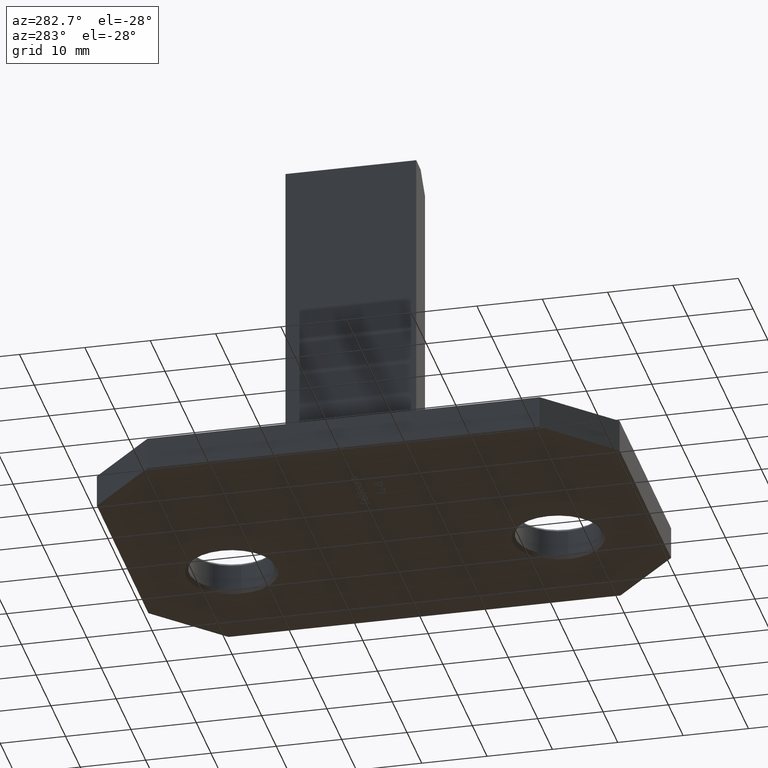
[diagram: clean part render]
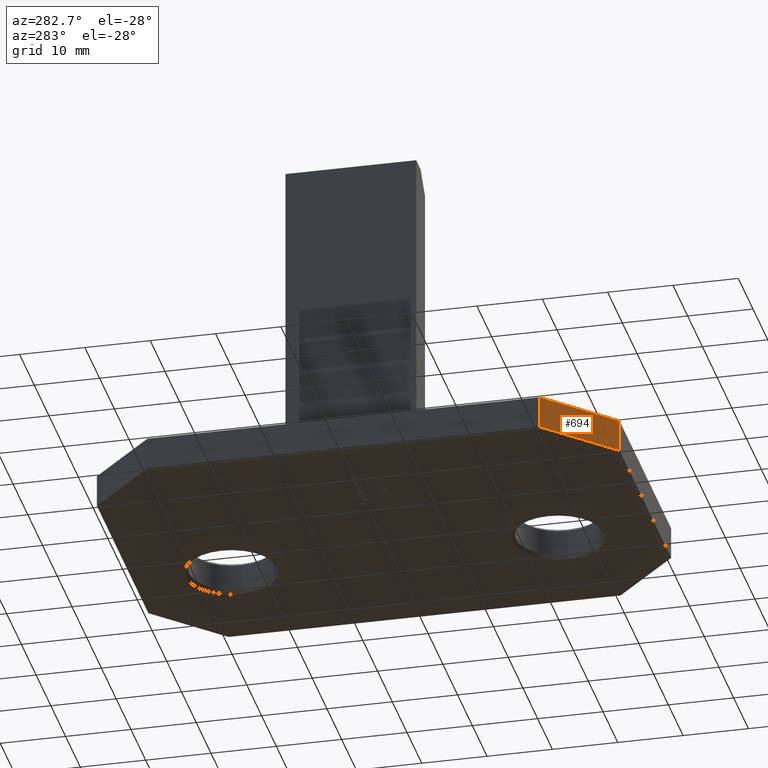
[diagram: same view with one face highlighted and labeled with its STEP entity id]
A machine part, auxiliary view. The second image highlights one B-rep face of the part: STEP entity #694.
In plain terms, the highlighted planar face has unit normal (0.7071, 0.7071, -0).
Its self-contained STEP definition (entity closure, byte-faithful):
#74 = VERTEX_POINT ( 'NONE', #6173 ) ;
#121 = CARTESIAN_POINT ( 'NONE',  ( -17.50000000000000700, -40.00000000000000000, 5.000000000000000000 ) ) ;
#395 = ORIENTED_EDGE ( 'NONE', *, *, #4118, .F. ) ;
#452 = CARTESIAN_POINT ( 'NONE',  ( -27.50000000000000700, -30.00000000000000000, 0.0000000000000000000 ) ) ;
#619 = CARTESIAN_POINT ( 'NONE',  ( -27.50000000000000700, -30.00000000000000000, 5.000000000000000000 ) ) ;
#694 = ADVANCED_FACE ( 'NONE', ( #2269 ), #1055, .F. ) ;
#705 = ORIENTED_EDGE ( 'NONE', *, *, #1637, .T. ) ;
#887 = VERTEX_POINT ( 'NONE', #3348 ) ;
#1055 = PLANE ( 'NONE',  #2587 ) ;
#1189 = DIRECTION ( 'NONE',  ( 0.7071067811865474600, -0.7071067811865476800, 0.0000000000000000000 ) ) ;
#1329 = VERTEX_POINT ( 'NONE', #8555 ) ;
#1352 = VERTEX_POINT ( 'NONE', #6377 ) ;
#1637 = EDGE_CURVE ( 'NONE', #887, #74, #9586, .T. ) ;
#2060 = CARTESIAN_POINT ( 'NONE',  ( -27.50000000000000700, -30.00000000000000000, 5.000000000000000000 ) ) ;
#2269 = FACE_OUTER_BOUND ( 'NONE', #3355, .T. ) ;
#2587 = AXIS2_PLACEMENT_3D ( 'NONE', #619, #7057, #6263 ) ;
#3348 = CARTESIAN_POINT ( 'NONE',  ( -27.50000000000000700, -30.00000000000000000, 5.000000000000000000 ) ) ;
#3355 = EDGE_LOOP ( 'NONE', ( #9494, #395, #6570, #705 ) ) ;
#3552 = EDGE_CURVE ( 'NONE', #887, #1329, #8256, .T. ) ;
#4118 = EDGE_CURVE ( 'NONE', #1329, #1352, #6063, .T. ) ;
#4600 = DIRECTION ( 'NONE',  ( -0.0000000000000000000, -0.0000000000000000000, -1.000000000000000000 ) ) ;
#5326 = CARTESIAN_POINT ( 'NONE',  ( -27.50000000000000700, -30.00000000000000000, 5.000000000000000000 ) ) ;
#5467 = VECTOR ( 'NONE', #1189, 1000.000000000000000 ) ;
#5512 = VECTOR ( 'NONE', #8081, 1000.000000000000000 ) ;
#6063 = LINE ( 'NONE', #121, #7884 ) ;
#6170 = VECTOR ( 'NONE', #8377, 1000.000000000000000 ) ;
#6173 = CARTESIAN_POINT ( 'NONE',  ( -27.50000000000000700, -30.00000000000000000, 0.0000000000000000000 ) ) ;
#6263 = DIRECTION ( 'NONE',  ( -0.7071067811865474600, 0.7071067811865476800, 0.0000000000000000000 ) ) ;
#6377 = CARTESIAN_POINT ( 'NONE',  ( -17.50000000000000700, -40.00000000000000000, 0.0000000000000000000 ) ) ;
#6570 = ORIENTED_EDGE ( 'NONE', *, *, #3552, .F. ) ;
#7057 = DIRECTION ( 'NONE',  ( 0.7071067811865476800, 0.7071067811865474600, -0.0000000000000000000 ) ) ;
#7749 = LINE ( 'NONE', #452, #5467 ) ;
#7884 = VECTOR ( 'NONE', #4600, 1000.000000000000000 ) ;
#8081 = DIRECTION ( 'NONE',  ( -0.0000000000000000000, -0.0000000000000000000, -1.000000000000000000 ) ) ;
#8256 = LINE ( 'NONE', #5326, #6170 ) ;
#8377 = DIRECTION ( 'NONE',  ( 0.7071067811865474600, -0.7071067811865476800, 0.0000000000000000000 ) ) ;
#8555 = CARTESIAN_POINT ( 'NONE',  ( -17.50000000000000700, -40.00000000000000000, 5.000000000000000000 ) ) ;
#9494 = ORIENTED_EDGE ( 'NONE', *, *, #9639, .T. ) ;
#9586 = LINE ( 'NONE', #2060, #5512 ) ;
#9639 = EDGE_CURVE ( 'NONE', #74, #1352, #7749, .T. ) ;